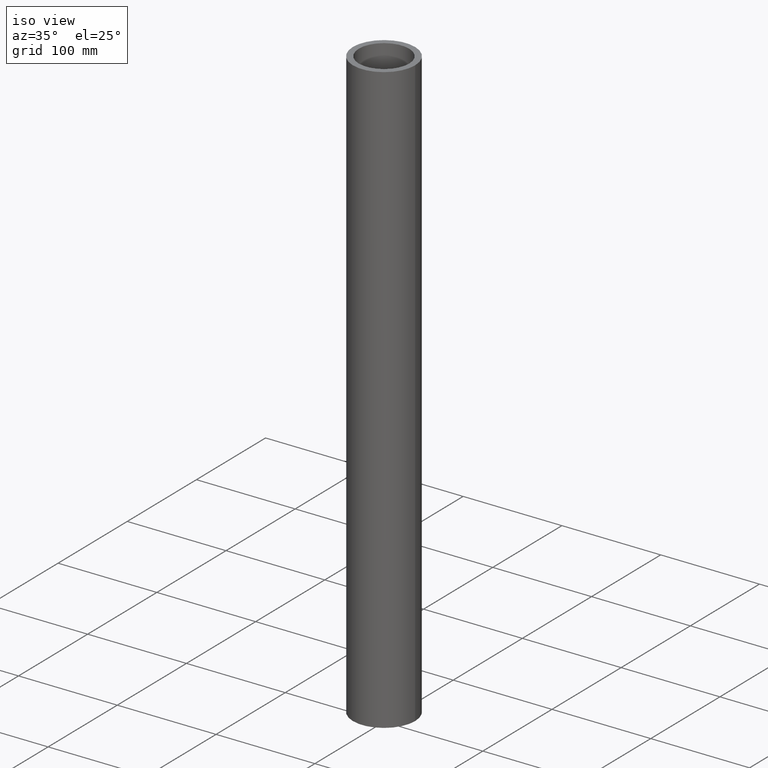
[diagram: clean part render]
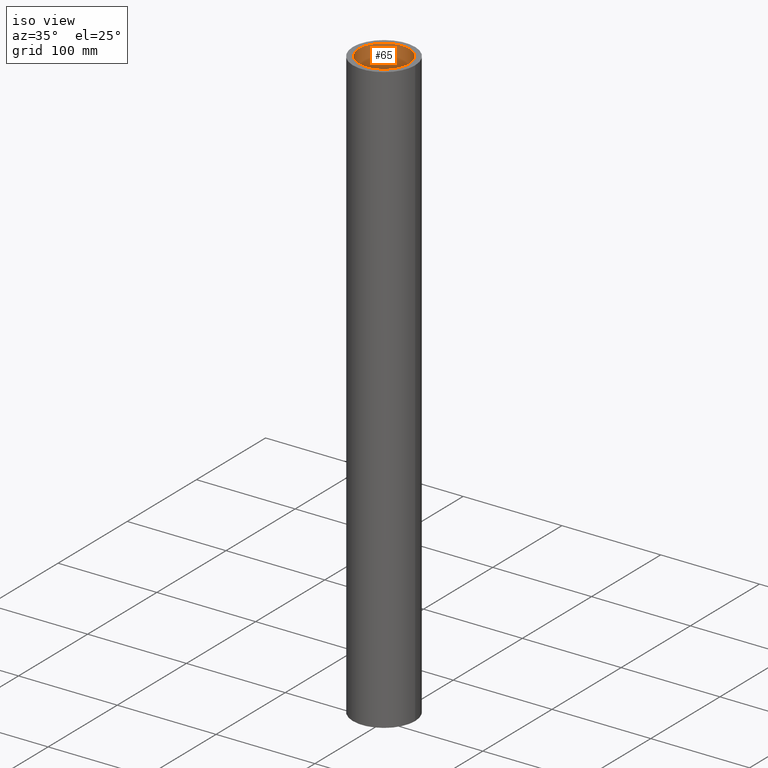
[diagram: same view with one face highlighted and labeled with its STEP entity id]
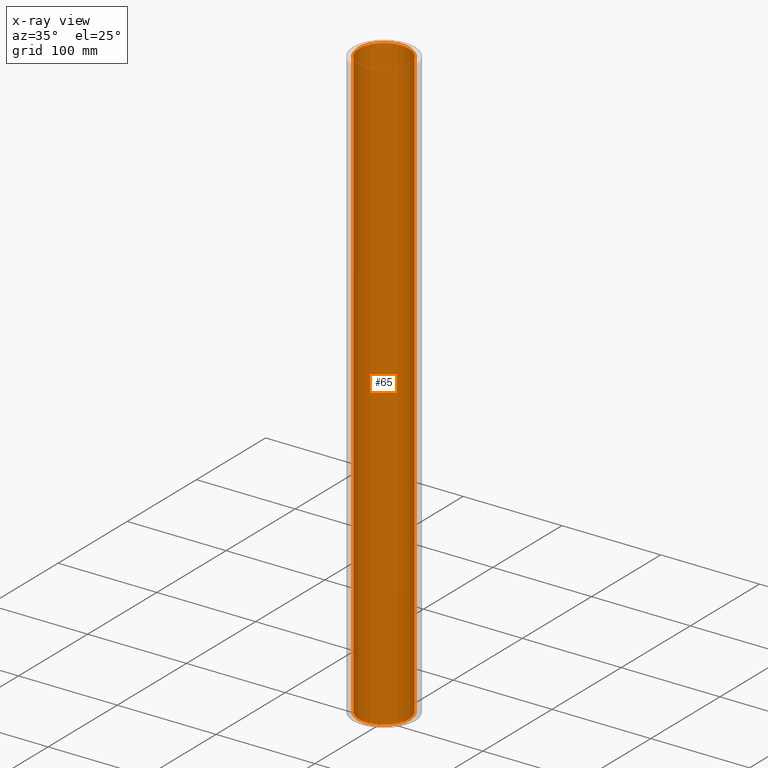
[diagram: x-ray of the same camera — body ghosted, the highlighted face saturated]
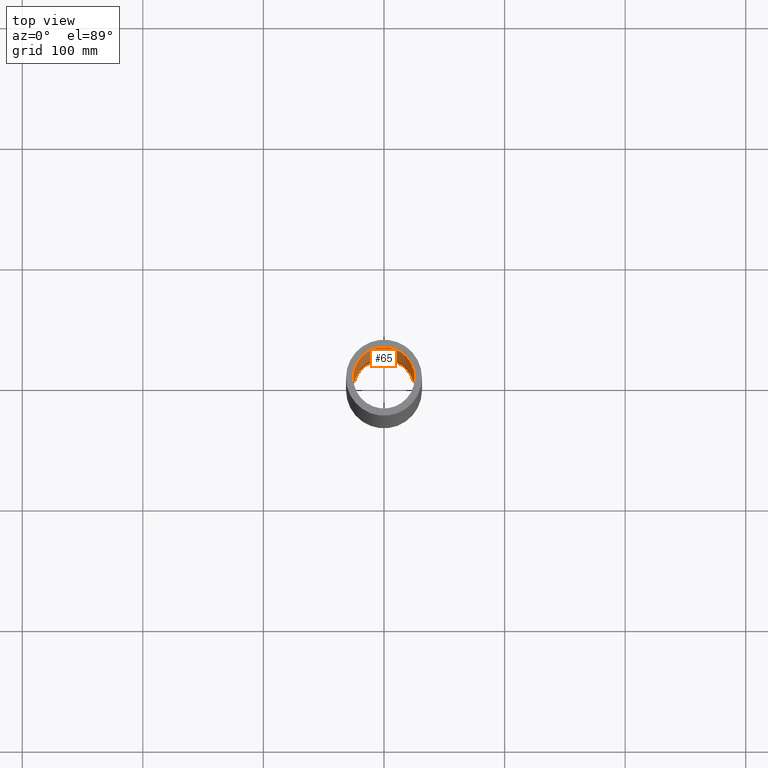
[diagram: same view with one face highlighted and labeled with its STEP entity id]
A machine part, iso view. The second image highlights one B-rep face of the part: STEP entity #65.
The next image is the same camera in x-ray: the body ghosted, the highlighted face saturated — about 0% of this face is hidden behind the body in this view.
A second angle (top view) of the same face is appended — the face is thin or edge-on in the first view.
In plain terms, the highlighted cylindrical surface (bore or boss wall) has radius 25.5 mm, axis along (0, 0, 1).
Its self-contained STEP definition (entity closure, byte-faithful):
#18=FACE_OUTER_BOUND('',#22,.T.);
#22=EDGE_LOOP('',(#46,#47,#48,#49));
#28=LINE('',#122,#30);
#30=VECTOR('',#103,25.5);
#32=CIRCLE('',#90,25.5);
#33=CIRCLE('',#91,25.5);
#36=VERTEX_POINT('',#119);
#37=VERTEX_POINT('',#121);
#40=EDGE_CURVE('',#36,#36,#32,.T.);
#41=EDGE_CURVE('',#36,#37,#28,.T.);
#42=EDGE_CURVE('',#37,#37,#33,.T.);
#46=ORIENTED_EDGE('',*,*,#40,.F.);
#47=ORIENTED_EDGE('',*,*,#41,.T.);
#48=ORIENTED_EDGE('',*,*,#42,.F.);
#49=ORIENTED_EDGE('',*,*,#41,.F.);
#58=CYLINDRICAL_SURFACE('',#89,25.5);
#65=ADVANCED_FACE('',(#18),#58,.F.);
#89=AXIS2_PLACEMENT_3D('',#118,#99,#100);
#90=AXIS2_PLACEMENT_3D('',#120,#101,#102);
#91=AXIS2_PLACEMENT_3D('',#123,#104,#105);
#99=DIRECTION('center_axis',(0.,0.,1.));
#100=DIRECTION('ref_axis',(-1.,0.,0.));
#101=DIRECTION('center_axis',(0.,0.,1.));
#102=DIRECTION('ref_axis',(-1.,0.,0.));
#103=DIRECTION('',(0.,0.,1.));
#104=DIRECTION('center_axis',(0.,0.,-1.));
#105=DIRECTION('ref_axis',(-1.,0.,0.));
#118=CARTESIAN_POINT('Origin',(0.,0.,0.));
#119=CARTESIAN_POINT('',(25.5,3.12284933782575E-15,-300.));
#120=CARTESIAN_POINT('Origin',(0.,0.,-300.));
#121=CARTESIAN_POINT('',(25.5,3.12284933782575E-15,300.));
#122=CARTESIAN_POINT('',(25.5,3.12284933782575E-15,0.));
#123=CARTESIAN_POINT('Origin',(0.,0.,300.));